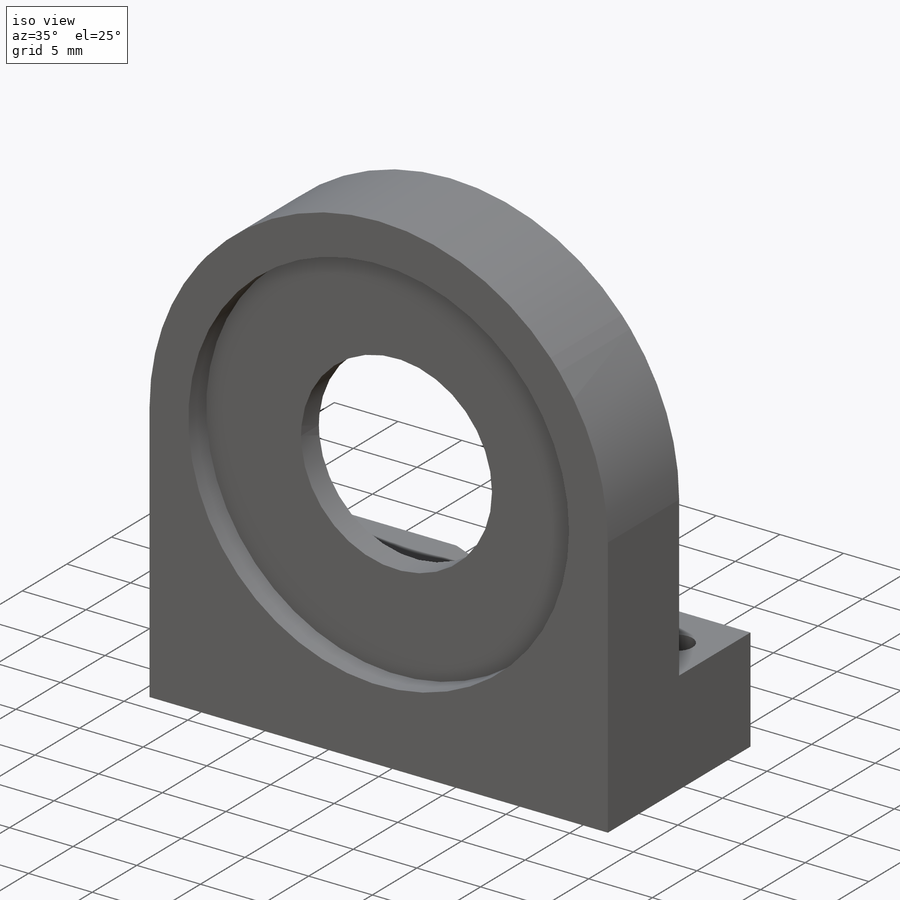
[diagram: iso view]
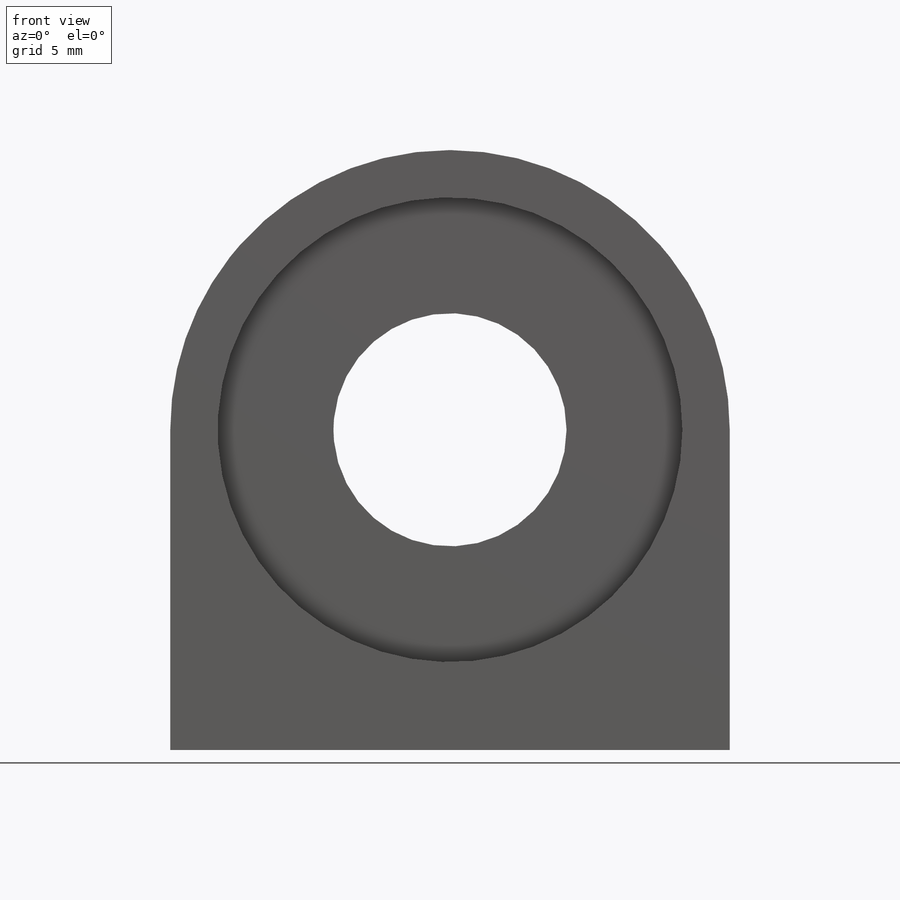
[diagram: front view]
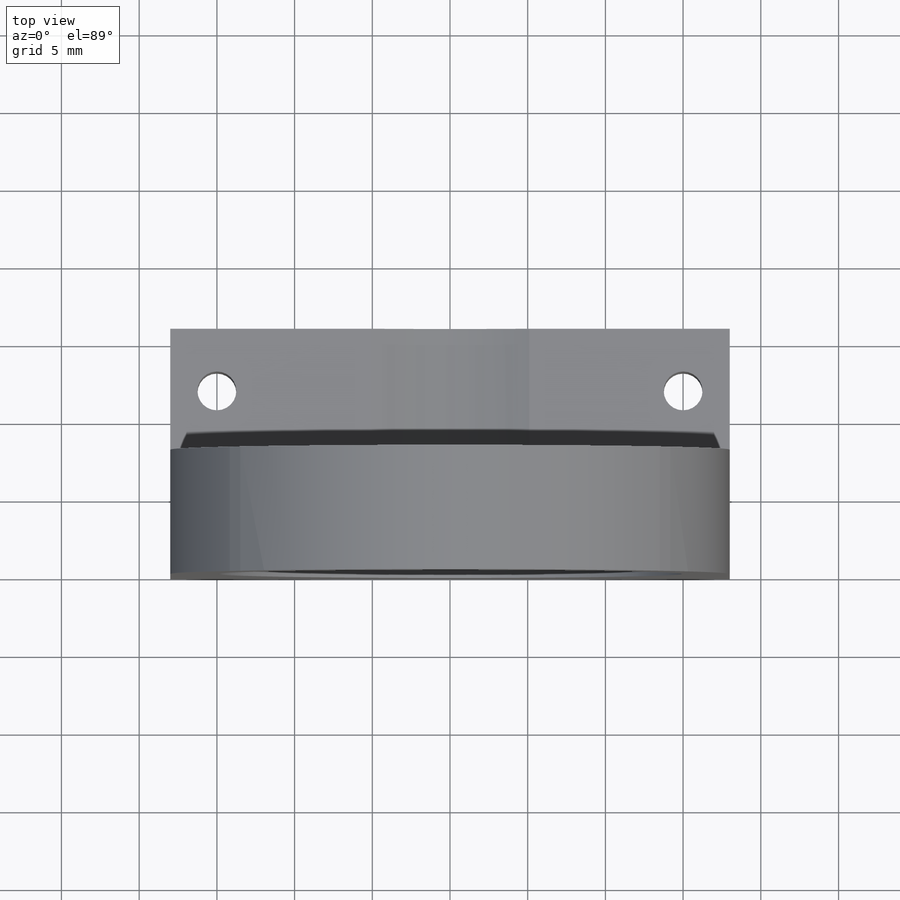
[diagram: top view]
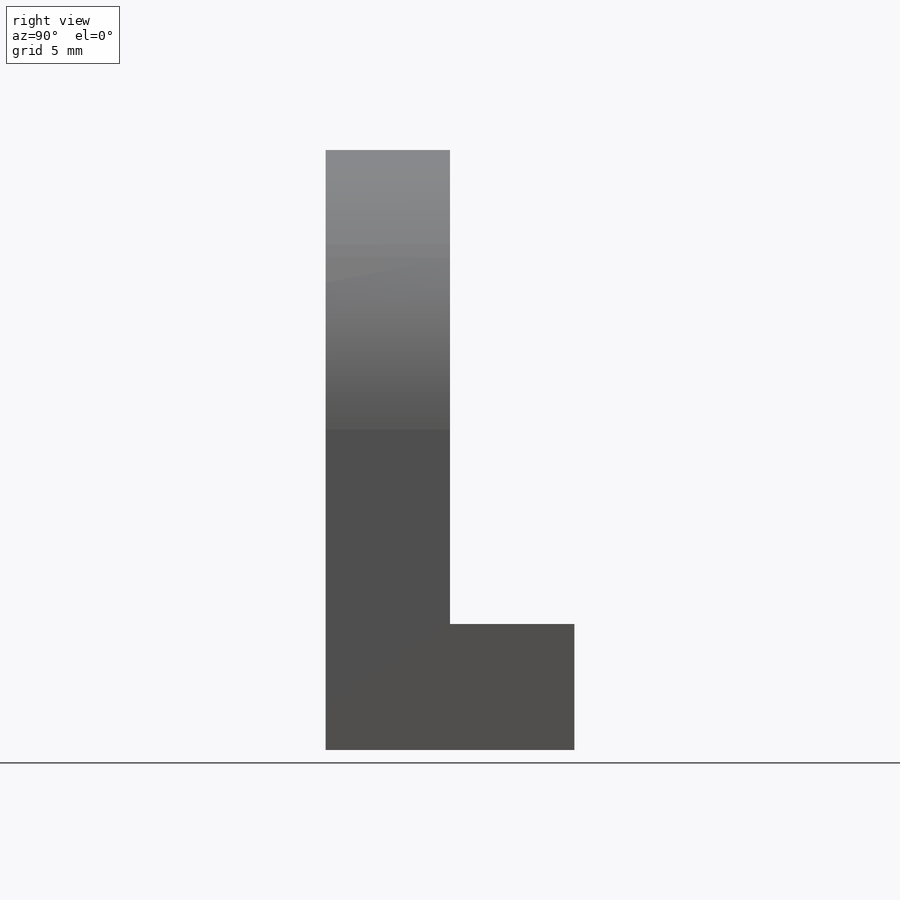
[diagram: right view]
SOLIDWORKS PART (.sldprt)
format: sldprt  version: not decoded by parser v0  size: 433,152 bytes
history: native  units: mm
features: sketch x13, extrude x6, cut_extrude x4, plane x3, material x1, chamfer x1, fillet x1, hole x1 (+9 scaffold rows collapsed)
feature tree (39):
  scaffold x9  (default folders/planes/origin — collapsed)
  material  "Material <não especificado>"
  plane  "Plano frontal"
  plane  "Plano superior"
  plane  "Plano direito"
  sketch  "Esboço1"  dims[c1.D1=32.62mm c1.D2=29.9mm c1.D6=2.57mm c1.D10=20.0mm c1.D11=36.0mm c1.D3=18.98mm c1.D4=18.98mm c1.D5=20.6mm c2.D6=0.23mm c2.D7=22.0mm c2.D8=6.0mm c3.D7=5.0mm c3.D9=6.0mm]
  extrude  "Ressalto-extrusão1"  Depth=2mm
  sketch  "Esboço16"  dims[D2=15.0mm D1=0.0mm]
  extrude  "Ressalto-extrusão5"  Depth=2mm
  sketch  "Esboço17"  dims[D2=12.0mm D1=0.0mm]
  extrude  "Ressalto-extrusão6"  Depth=8.1mm
  chamfer  "Chanfro1"  Distance=12mm
  fillet  "Filete3"  Radius=44mm
  sketch  "Esboço18"  dims[D1=0.0mm]
  cut_extrude  "Corte-extrusão11"  [1 undecoded]
  sketch  "Esboço19"  dims[D1=27.0mm D2=6.0mm D3=6.0mm]
  cut_extrude  "Corte-extrusão12"  [1 undecoded]
  sketch  "Esboço20"  dims[D1=4.0mm D2=4.0mm]
  hole  "Furo roscado de M3x0.51"  Diameter=2.5mm Depth=8.5mm
  sketch  "Esboço22"
  sketch  "Esboço21"  dims[hole-wizard template sketch: 50 standard entries collapsed; hole parameters above]
  sketch  "Esboço23"  dims[D2=8.0mm D3=6.25mm D1=0.0mm]
  cut_extrude  "Corte-extrusão13"  [1 undecoded]
  sketch  "Esboço24"
  extrude  "Ressalto-extrusão7"  [1 undecoded]
  sketch  "Esboço26"  dims[D1=27.0mm]
  cut_extrude  "Corte-extrusão15"  [1 undecoded]
  sketch  "Esboço27"  dims[D1=0.0mm]
  extrude  "Ressalto-extrusão8"  [1 undecoded]
  sketch  "Esboço28"  dims[D1=0.0mm D2=0.0mm]
  extrude  "Ressalto-extrusão9"  [1 undecoded]
decode coverage: 17 of 26 modeling features carry decoded parameters
note: ~ marks probable driven/reference dimensions
note: 7 parameter values undecoded
summary: no parameter record found for 7 features
note: suppression state not decoded; provenance and decode notes live in map.json
